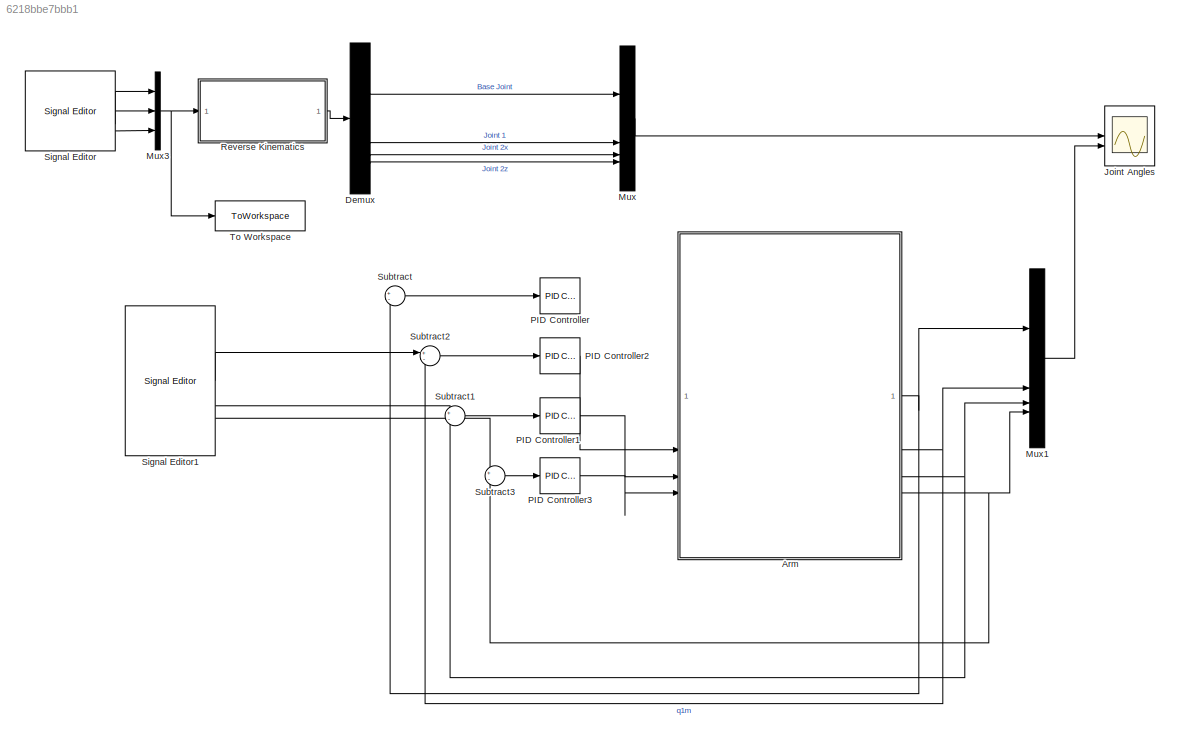
MODEL slx_6218bbe7bbb1
KIND model
CONFIG AbsTol = auto
CONFIG EnableMultiTasking = off
CONFIG FixedStep = 0.001
CONFIG MaxStep = auto
CONFIG MinStep = auto
CONFIG RelTol = 1e-3
CONFIG SampleTimeConstraint = Unconstrained
CONFIG SolverName = ode8
CONFIG StartTime = 0.0
CONFIG StopTime = 10
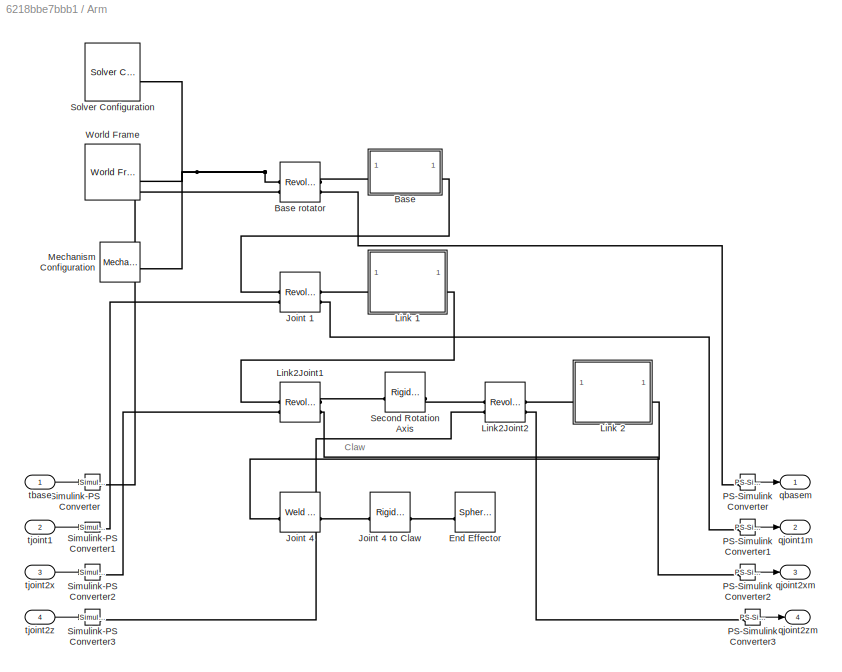
BLOCK [SubSystem] Arm
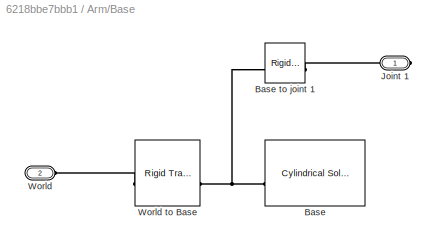
BLOCK [SubSystem] Arm/Base
BLOCK [Reference] Arm/Base rotator  REF=sm_lib/Joints/Revolute Joint
  SourceBlock = sm_lib/Joints/Revolute Joint
  SourceType = Revolute Joint
BLOCK [Reference] Arm/Base/Base  REF=sm_lib/Body Elements/Cylindrical Solid
  SourceBlock = sm_lib/Body Elements/Cylindrical Solid
  SourceType = Cylindrical Solid
BLOCK [Reference] Arm/Base/Base to joint 1  REF=sm_lib/Frames and
Transforms/Rigid
Transform
  SourceBlock = sm_lib/Frames and\nTransforms/Rigid\nTransform
  SourceType = Rigid\nTransform
BLOCK [PMIOPort] Arm/Base/Joint 1
  Side = Right
BLOCK [PMIOPort] Arm/Base/World
  Port = 2
  Side = Left
BLOCK [Reference] Arm/Base/World to Base  REF=sm_lib/Frames and
Transforms/Rigid
Transform
  SourceBlock = sm_lib/Frames and\nTransforms/Rigid\nTransform
  SourceType = Rigid\nTransform
BLOCK [Reference] Arm/End Effector  REF=sm_lib/Body Elements/Spherical Solid
  SourceBlock = sm_lib/Body Elements/Spherical Solid
  SourceType = Spherical Solid
BLOCK [Reference] Arm/Joint 1  REF=sm_lib/Joints/Revolute Joint
  SourceBlock = sm_lib/Joints/Revolute Joint
  SourceType = Revolute Joint
BLOCK [Reference] Arm/Joint 4  REF=sm_lib/Joints/Weld Joint
  SourceBlock = sm_lib/Joints/Weld Joint
  SourceType = Weld Joint
BLOCK [Reference] Arm/Joint 4 to Claw  REF=sm_lib/Frames and
Transforms/Rigid
Transform
  SourceBlock = sm_lib/Frames and\nTransforms/Rigid\nTransform
  SourceType = Rigid\nTransform
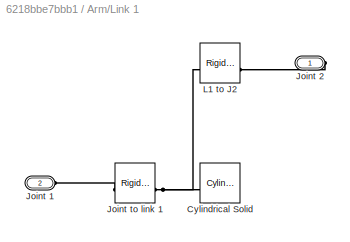
BLOCK [SubSystem] Arm/Link 1
BLOCK [Reference] Arm/Link 1/Cylindrical Solid  REF=sm_lib/Body Elements/Cylindrical Solid
  SourceBlock = sm_lib/Body Elements/Cylindrical Solid
  SourceType = Cylindrical Solid
BLOCK [PMIOPort] Arm/Link 1/Joint 1
  Port = 2
  Side = Left
BLOCK [PMIOPort] Arm/Link 1/Joint 2
  Side = Right
BLOCK [Reference] Arm/Link 1/Joint to link 1  REF=sm_lib/Frames and
Transforms/Rigid
Transform
  SourceBlock = sm_lib/Frames and\nTransforms/Rigid\nTransform
  SourceType = Rigid\nTransform
BLOCK [Reference] Arm/Link 1/L1 to J2  REF=sm_lib/Frames and
Transforms/Rigid
Transform
  SourceBlock = sm_lib/Frames and\nTransforms/Rigid\nTransform
  SourceType = Rigid\nTransform
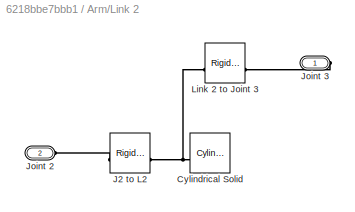
BLOCK [SubSystem] Arm/Link 2
BLOCK [Reference] Arm/Link 2/Cylindrical Solid  REF=sm_lib/Body Elements/Cylindrical Solid
  NameLocation = top
  SourceBlock = sm_lib/Body Elements/Cylindrical Solid
  SourceType = Cylindrical Solid
BLOCK [Reference] Arm/Link 2/J2 to L2  REF=sm_lib/Frames and
Transforms/Rigid
Transform
  SourceBlock = sm_lib/Frames and\nTransforms/Rigid\nTransform
  SourceType = Rigid\nTransform
BLOCK [PMIOPort] Arm/Link 2/Joint 2
  Port = 2
  Side = Left
BLOCK [PMIOPort] Arm/Link 2/Joint 3
  Side = Right
BLOCK [Reference] Arm/Link 2/Link 2 to Joint 3  REF=sm_lib/Frames and
Transforms/Rigid
Transform
  SourceBlock = sm_lib/Frames and\nTransforms/Rigid\nTransform
  SourceType = Rigid\nTransform
BLOCK [Reference] Arm/Link2Joint1  REF=sm_lib/Joints/Revolute Joint
  SourceBlock = sm_lib/Joints/Revolute Joint
  SourceType = Revolute Joint
BLOCK [Reference] Arm/Link2Joint2  REF=sm_lib/Joints/Revolute Joint
  SourceBlock = sm_lib/Joints/Revolute Joint
  SourceType = Revolute Joint
BLOCK [Reference] Arm/Mechanism Configuration  REF=sm_lib/Utilities/Mechanism
Configuration
  SourceBlock = sm_lib/Utilities/Mechanism\nConfiguration
  SourceType = Mechanism\nConfiguration
BLOCK [Reference] Arm/PS-Simulink Converter  REF=nesl_utility/PS-Simulink
Converter
  SourceBlock = nesl_utility/PS-Simulink\nConverter
  SourceType = PS-Simulink\nConverter
BLOCK [Reference] Arm/PS-Simulink Converter1  REF=nesl_utility/PS-Simulink
Converter
  SourceBlock = nesl_utility/PS-Simulink\nConverter
  SourceType = PS-Simulink\nConverter
BLOCK [Reference] Arm/PS-Simulink Converter2  REF=nesl_utility/PS-Simulink
Converter
  SourceBlock = nesl_utility/PS-Simulink\nConverter
  SourceType = PS-Simulink\nConverter
BLOCK [Reference] Arm/PS-Simulink Converter3  REF=nesl_utility/PS-Simulink
Converter
  SourceBlock = nesl_utility/PS-Simulink\nConverter
  SourceType = PS-Simulink\nConverter
BLOCK [Reference] Arm/Second Rotation Axis  REF=sm_lib/Frames and
Transforms/Rigid
Transform
  SourceBlock = sm_lib/Frames and\nTransforms/Rigid\nTransform
  SourceType = Rigid\nTransform
BLOCK [Reference] Arm/Simulink-PS Converter  REF=nesl_utility/Simulink-PS
Converter
  SourceBlock = nesl_utility/Simulink-PS\nConverter
  SourceType = Simulink-PS\nConverter
BLOCK [Reference] Arm/Simulink-PS Converter1  REF=nesl_utility/Simulink-PS
Converter
  SourceBlock = nesl_utility/Simulink-PS\nConverter
  SourceType = Simulink-PS\nConverter
BLOCK [Reference] Arm/Simulink-PS Converter2  REF=nesl_utility/Simulink-PS
Converter
  SourceBlock = nesl_utility/Simulink-PS\nConverter
  SourceType = Simulink-PS\nConverter
BLOCK [Reference] Arm/Simulink-PS Converter3  REF=nesl_utility/Simulink-PS
Converter
  SourceBlock = nesl_utility/Simulink-PS\nConverter
  SourceType = Simulink-PS\nConverter
BLOCK [Reference] Arm/Solver Configuration  REF=nesl_utility/Solver
Configuration
  SourceBlock = nesl_utility/Solver\nConfiguration
  SourceType = Solver\nConfiguration
BLOCK [Reference] Arm/World Frame  REF=sm_lib/Frames and
Transforms/World Frame
  SourceBlock = sm_lib/Frames and\nTransforms/World Frame
  SourceType = World Frame
BLOCK [Outport] Arm/qbasem
BLOCK [Outport] Arm/qjoint1m
  Port = 2
BLOCK [Outport] Arm/qjoint2xm
  Port = 3
BLOCK [Outport] Arm/qjoint2zm
  Port = 4
BLOCK [Inport] Arm/tbase
BLOCK [Inport] Arm/tjoint1
  Port = 2
BLOCK [Inport] Arm/tjoint2x
  Port = 3
BLOCK [Inport] Arm/tjoint2z
  Port = 4
BLOCK [Demux] Demux
BLOCK [Scope] Joint Angles
  Floating = off
  NumInputPorts = 2
  ScopeSpecificationString = Simulink.scopes.TimeScopeBlockCfg('CurrentConfiguration', extmgr.ConfigurationSet(extmgr.Configuration('Core','General UI',true),extmgr.Configuration('Core','Source UI',true),extmgr.Configuration('Sources','WiredSimulink',true),extmgr.Configuration('Visuals','Time Domain',true,'SerializedDisplays',{struct('MinYLimReal','-1.00000','MaxYLimReal','1.00000','YLabelReal','','MinYLimMag','0.00000','MaxY...<+2016ch>
BLOCK [Mux] Mux
  DisplayOption = bar
BLOCK [Mux] Mux1
  DisplayOption = bar
BLOCK [Mux] Mux3
  DisplayOption = bar
  Inputs = 3
BLOCK [Reference] PID Controller  REF=slpidlib/PID Controller
  LibrarySourceBlock = simulink/Continuous/PID Controller
  SourceBlock = slpidlib/PID Controller
  SourceType = PID 1dof
BLOCK [Reference] PID Controller1  REF=slpidlib/PID Controller
  LibrarySourceBlock = simulink/Continuous/PID Controller
  SourceBlock = slpidlib/PID Controller
  SourceType = PID 1dof
BLOCK [Reference] PID Controller2  REF=slpidlib/PID Controller
  LibrarySourceBlock = simulink/Continuous/PID Controller
  SourceBlock = slpidlib/PID Controller
  SourceType = PID 1dof
BLOCK [Reference] PID Controller3  REF=slpidlib/PID Controller
  LibrarySourceBlock = simulink/Continuous/PID Controller
  SourceBlock = slpidlib/PID Controller
  SourceType = PID 1dof
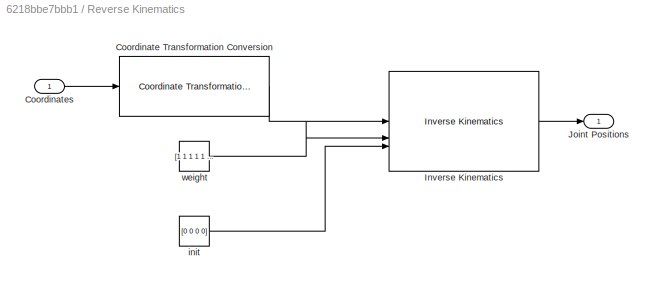
BLOCK [SubSystem] Reverse Kinematics
BLOCK [Reference] Reverse Kinematics/Coordinate Transformation Conversion  REF=robotcorelib/Coordinate Transformation Conversion
  LibrarySourceBlock = robotutilslib/Coordinate Transformation Conversion
  SourceBlock = robotcorelib/Coordinate Transformation Conversion
  SourceType = robotics.slcore.internal.block.CoordinateTransformationConversion
BLOCK [Inport] Reverse Kinematics/Coordinates
BLOCK [Reference] Reverse Kinematics/Inverse Kinematics  REF=robotmaniplib/Inverse Kinematics
  SourceBlock = robotmaniplib/Inverse Kinematics
  SourceType = Inverse Kinematics
BLOCK [Outport] Reverse Kinematics/Joint Positions
BLOCK [Constant] Reverse Kinematics/init
  Value = [0 0 0 0]
BLOCK [Constant] Reverse Kinematics/weight
  Value = [1 1 1 1 1 1]
BLOCK [Reference] Signal Editor  REF=SignalEditorBlockLib/Signal Editor
  LibrarySourceBlock = simulink/Sources/Signal Editor
  SourceBlock = SignalEditorBlockLib/Signal Editor
  SourceType = SignalEditor
  UserDataPersistent = on
BLOCK [Reference] Signal Editor1  REF=SignalEditorBlockLib/Signal Editor
  LibrarySourceBlock = simulink/Sources/Signal Editor
  SourceBlock = SignalEditorBlockLib/Signal Editor
  SourceType = SignalEditor
  UserDataPersistent = on
BLOCK [Sum] Subtract
  Inputs = +-
BLOCK [Sum] Subtract1
  Inputs = +-
BLOCK [Sum] Subtract2
  Inputs = +-
BLOCK [Sum] Subtract3
  Inputs = +-
BLOCK [ToWorkspace] To Workspace
  FixptAsFi = on
  MaxDataPoints = inf
  SampleTime = -1
  VariableName = demo
ANNOTATION Arm: Claw
LINE Arm/PS-Simulink Converter1:1 -> Arm/qjoint1m:1
LINE Arm/PS-Simulink Converter2:1 -> Arm/qjoint2xm:1
LINE Arm/PS-Simulink Converter3:1 -> Arm/qjoint2zm:1
LINE Arm/PS-Simulink Converter:1 -> Arm/qbasem:1
LINE Arm/tbase:1 -> Arm/Simulink-PS Converter:1
LINE Arm/tjoint1:1 -> Arm/Simulink-PS Converter1:1
LINE Arm/tjoint2x:1 -> Arm/Simulink-PS Converter2:1
LINE Arm/tjoint2z:1 -> Arm/Simulink-PS Converter3:1
NET Arm:1 -> Mux1:1, Subtract:2
NET Arm:2 -> Mux1:2, Subtract2:2
NET Arm:3 -> Mux1:3, Subtract1:2
NET Arm:4 -> Mux1:4, Subtract3:2
LINE Demux:1 -> Mux:1
LINE Demux:2 -> Mux:2
LINE Demux:3 -> Mux:3
LINE Demux:4 -> Mux:4
LINE Mux1:1 -> Joint Angles:2
NET Mux3:1 -> Reverse Kinematics:1, To Workspace:1
LINE Mux:1 -> Joint Angles:1
LINE PID Controller1:1 -> Arm:3
LINE PID Controller2:1 -> Arm:2
LINE PID Controller3:1 -> Arm:4
LINE Reverse Kinematics/Coordinate Transformation Conversion:1 -> Reverse Kinematics/Inverse Kinematics:1
LINE Reverse Kinematics/Coordinates:1 -> Reverse Kinematics/Coordinate Transformation Conversion:1
LINE Reverse Kinematics/Inverse Kinematics:1 -> Reverse Kinematics/Joint Positions:1
LINE Reverse Kinematics/init:1 -> Reverse Kinematics/Inverse Kinematics:3
LINE Reverse Kinematics/weight:1 -> Reverse Kinematics/Inverse Kinematics:2
LINE Reverse Kinematics:1 -> Demux:1
LINE Signal Editor1:1 -> Subtract2:1
LINE Signal Editor1:2 -> Subtract1:1
LINE Signal Editor1:3 -> Subtract3:1
LINE Signal Editor:1 -> Mux3:1
LINE Signal Editor:2 -> Mux3:2
LINE Signal Editor:3 -> Mux3:3
LINE Subtract1:1 -> PID Controller1:1
LINE Subtract2:1 -> PID Controller2:1
LINE Subtract3:1 -> PID Controller3:1
LINE Subtract:1 -> PID Controller:1
PNET net1: Arm/Base rotator:LConn1 -- Arm/Mechanism Configuration:RConn1 -- Arm/Solver Configuration:RConn1 -- Arm/World Frame:RConn1
PLINE Arm/Base rotator:LConn2 -- Arm/Simulink-PS Converter:RConn1
PLINE Arm/Base rotator:RConn1 -- Arm/Base:LConn1
PLINE Arm/Base rotator:RConn2 -- Arm/PS-Simulink Converter:LConn1
PNET net2: Arm/Base/Base to joint 1:LConn1 -- Arm/Base/Base:RConn1 -- Arm/Base/World to Base:RConn1
PLINE Arm/Base/Base to joint 1:RConn1 -- Arm/Base/Joint 1:RConn1
PLINE Arm/Base/World to Base:LConn1 -- Arm/Base/World:RConn1
PLINE Arm/Base:RConn1 -- Arm/Joint 1:LConn1
PLINE Arm/End Effector:RConn1 -- Arm/Joint 4 to Claw:RConn1
PLINE Arm/Joint 1:LConn2 -- Arm/Simulink-PS Converter1:RConn1
PLINE Arm/Joint 1:RConn1 -- Arm/Link 1:LConn1
PLINE Arm/Joint 1:RConn2 -- Arm/PS-Simulink Converter1:LConn1
PLINE Arm/Joint 4 to Claw:LConn1 -- Arm/Joint 4:RConn1
PLINE Arm/Joint 4:LConn1 -- Arm/Link 2:RConn1
PNET net3: Arm/Link 1/Cylindrical Solid:RConn1 -- Arm/Link 1/Joint to link 1:RConn1 -- Arm/Link 1/L1 to J2:LConn1
PLINE Arm/Link 1/Joint 1:RConn1 -- Arm/Link 1/Joint to link 1:LConn1
PLINE Arm/Link 1/Joint 2:RConn1 -- Arm/Link 1/L1 to J2:RConn1
PLINE Arm/Link 1:RConn1 -- Arm/Link2Joint1:LConn1
PNET net4: Arm/Link 2/Cylindrical Solid:RConn1 -- Arm/Link 2/J2 to L2:RConn1 -- Arm/Link 2/Link 2 to Joint 3:LConn1
PLINE Arm/Link 2/J2 to L2:LConn1 -- Arm/Link 2/Joint 2:RConn1
PLINE Arm/Link 2/Joint 3:RConn1 -- Arm/Link 2/Link 2 to Joint 3:RConn1
PLINE Arm/Link 2:LConn1 -- Arm/Link2Joint2:RConn1
PLINE Arm/Link2Joint1:LConn2 -- Arm/Simulink-PS Converter2:RConn1
PLINE Arm/Link2Joint1:RConn1 -- Arm/Second Rotation Axis:LConn1
PLINE Arm/Link2Joint1:RConn2 -- Arm/PS-Simulink Converter2:LConn1
PLINE Arm/Link2Joint2:LConn1 -- Arm/Second Rotation Axis:RConn1
PLINE Arm/Link2Joint2:LConn2 -- Arm/Simulink-PS Converter3:RConn1
PLINE Arm/Link2Joint2:RConn2 -- Arm/PS-Simulink Converter3:LConn1
note: NET lines group one-source signal fan-out (src -> all destinations, sorted); 1:1 wires keep LINE; PNET lines group multi-terminal physical nets as a canonical sorted terminal list (undirected conserving connections); 2-terminal nets keep the pairwise PLINE form
